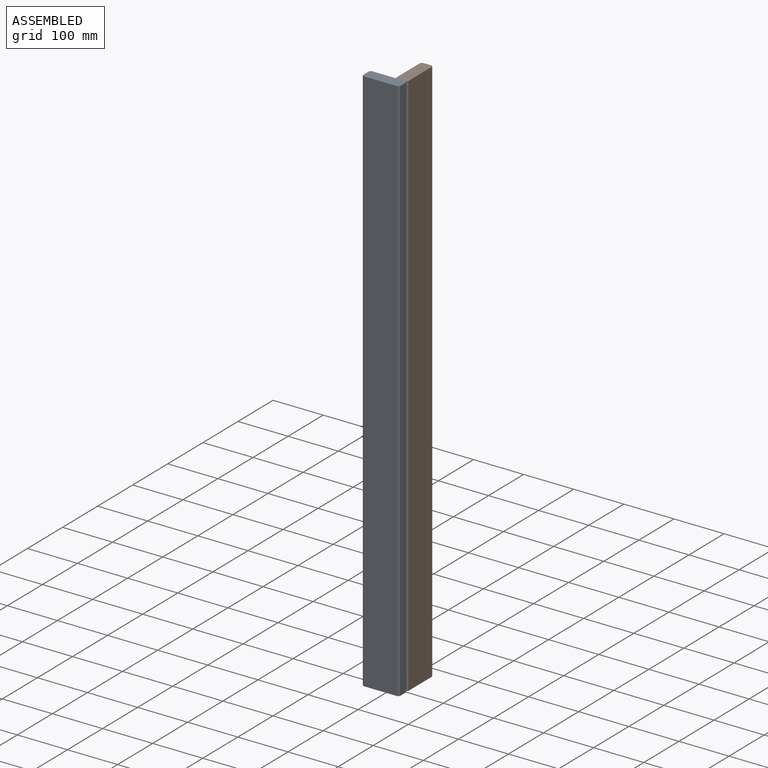
[diagram: assembled view]
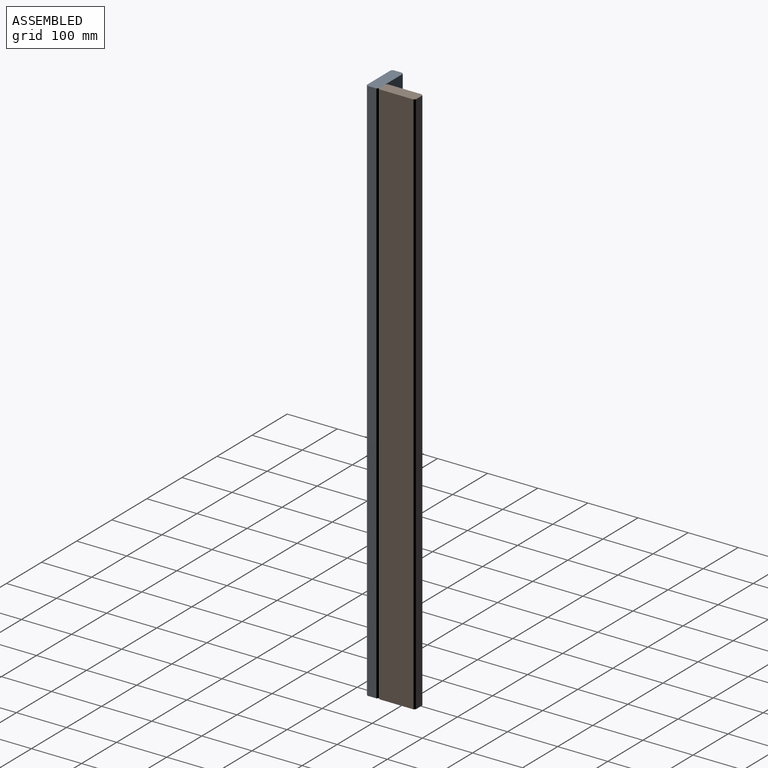
[diagram: assembled view, second angle]
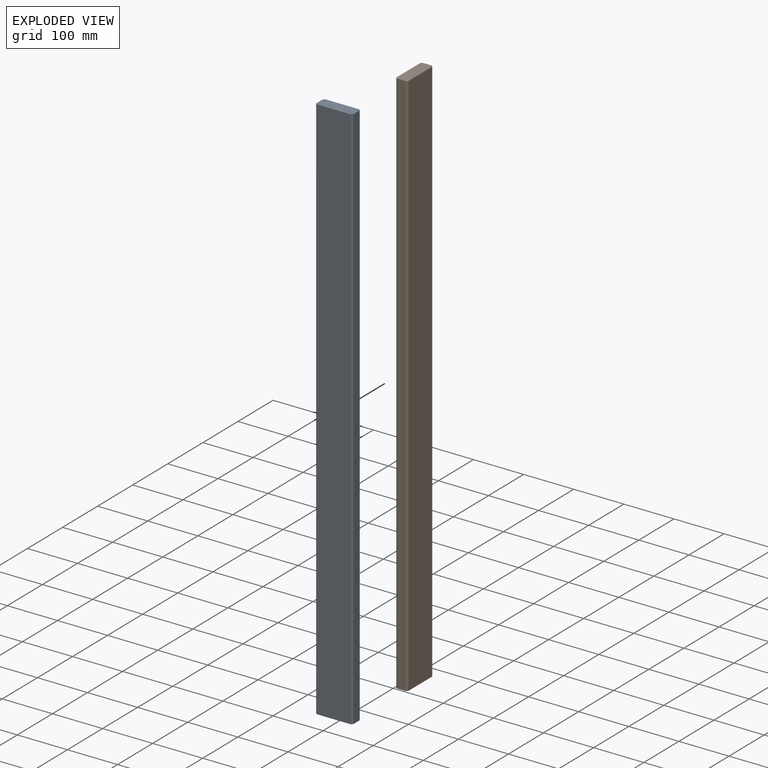
[diagram: exploded view]
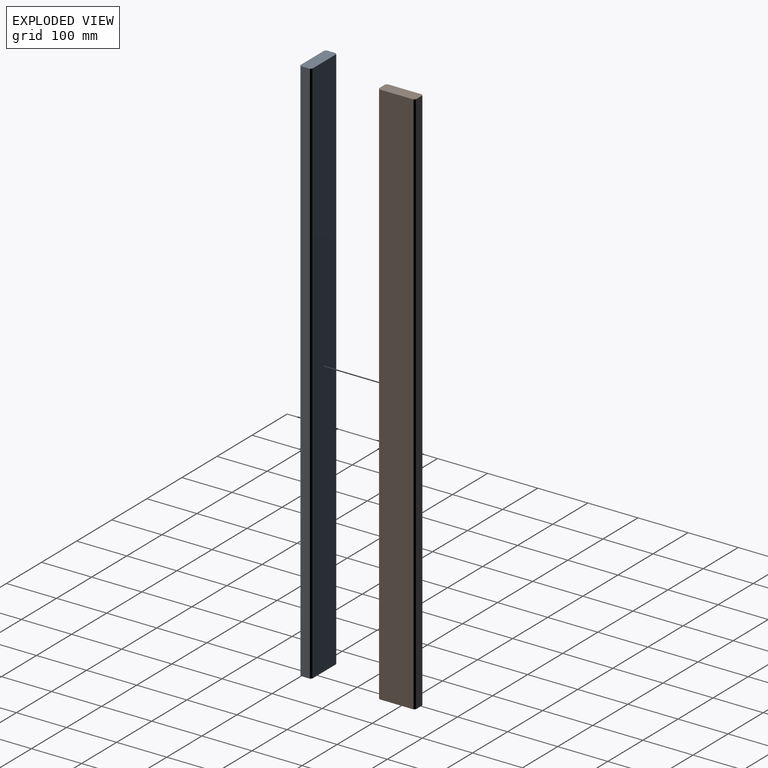
[diagram: exploded view, second angle]
ASSEMBLY  parts=2 mates=3
PART A: 10 faces, bbox 74x24x1100 mm
  f0: plane 1100x18mm, normal (-1,0,0), area 19800mm2, adj f4,f5,f6,f7
  f1: plane 1100x68mm, normal (0,-1,0), area 74800mm2, adj f4,f5,f6,f9
  f2: plane 1100x18mm, normal (1,0,0), area 19800mm2, adj f4,f5,f8,f9
  f3: plane 1100x68mm, normal (0,1,0), area 74800mm2, adj f4,f5,f7,f8
  f4: plane 74x24mm, normal (0,0,1), area 1758mm2, adj f0,f1,f2,f3,f6,f7,f8,f9
  f5: plane 74x24mm, normal (0,0,-1), area 1758mm2, adj f0,f1,f2,f3,f6,f7,f8,f9
  f6: plane 1100x3mm, normal (-0.71,-0.71,0), area 4666.9mm2, adj f0,f1,f4,f5
  f7: plane 1100x3mm, normal (-0.71,0.71,0), area 4666.9mm2, adj f0,f3,f4,f5
  f8: plane 1100x3mm, normal (0.71,0.71,0), area 4666.9mm2, adj f2,f3,f4,f5
  f9: plane 1100x3mm, normal (0.71,-0.71,0), area 4666.9mm2, adj f1,f2,f4,f5
PART B: same geometry as A
PLACE A rot(axis=(1,0,0),180deg) t=(-327.48,-26.13,1672.85)mm
PLACE B rot(axis=(0,0,-1),90deg) t=(-277.48,47.87,572.85)mm
MATE planar A.f1 <-> B.f2  axis (0,1,0) through (-290.48,-26.13,1122.85)mm
MATE planar B.f4 <-> A.f5  axis (0,0,1) through (-265.48,10.87,1672.85)mm
MATE planar B.f3 <-> A.f2  axis (1,0,0) through (-253.48,10.87,1122.85)mm
